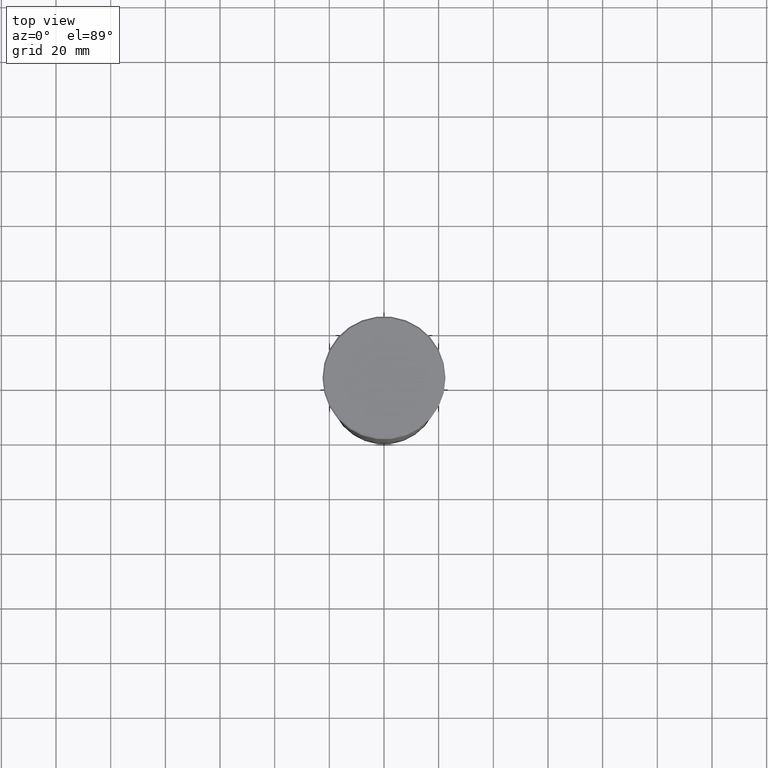
[diagram: clean part render]
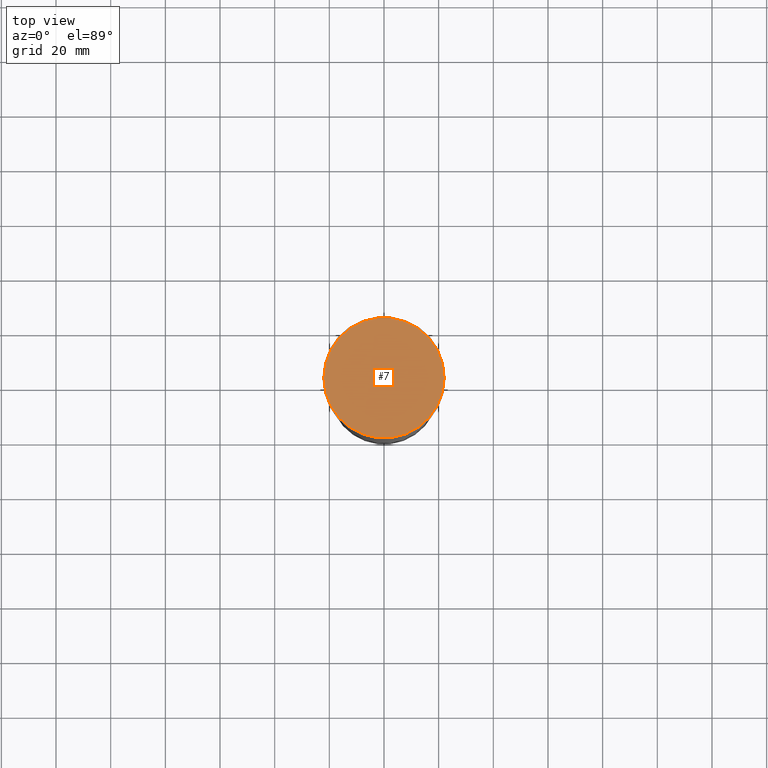
[diagram: same view with one face highlighted and labeled with its STEP entity id]
A machine part, top view. The second image highlights one B-rep face of the part: STEP entity #7.
In plain terms, the highlighted planar face has unit normal (0, -0, 1).
Its self-contained STEP definition (entity closure, byte-faithful):
#7 = ADVANCED_FACE ( 'NONE', ( #745 ), #593, .T. ) ;
#50 = CARTESIAN_POINT ( 'NONE',  ( -21.99999999999998579, 0.000000000000000000, 0.000000000000000000 ) ) ;
#123 = ORIENTED_EDGE ( 'NONE', *, *, #915, .T. ) ;
#150 = CARTESIAN_POINT ( 'NONE',  ( 0.000000000000000000, 0.000000000000000000, 0.000000000000000000 ) ) ;
#174 = CARTESIAN_POINT ( 'NONE',  ( 0.000000000000000000, 0.000000000000000000, 0.000000000000000000 ) ) ;
#295 = DIRECTION ( 'NONE',  ( -0.000000000000000000, -0.000000000000000000, 1.000000000000000000 ) ) ;
#313 = CIRCLE ( 'NONE', #971, 21.99999999999998579 ) ;
#336 = ORIENTED_EDGE ( 'NONE', *, *, #860, .T. ) ;
#359 = EDGE_LOOP ( 'NONE', ( #123, #336 ) ) ;
#374 = AXIS2_PLACEMENT_3D ( 'NONE', #904, #769, #529 ) ;
#375 = VERTEX_POINT ( 'NONE', #50 ) ;
#403 = CARTESIAN_POINT ( 'NONE',  ( 21.99999999999998579, 2.724839128102860202E-15, 0.000000000000000000 ) ) ;
#529 = DIRECTION ( 'NONE',  ( 1.000000000000000000, 0.000000000000000000, 0.000000000000000000 ) ) ;
#593 = PLANE ( 'NONE',  #991 ) ;
#656 = VERTEX_POINT ( 'NONE', #403 ) ;
#685 = DIRECTION ( 'NONE',  ( 0.000000000000000000, -0.000000000000000000, 1.000000000000000000 ) ) ;
#745 = FACE_OUTER_BOUND ( 'NONE', #359, .T. ) ;
#769 = DIRECTION ( 'NONE',  ( -0.000000000000000000, -0.000000000000000000, 1.000000000000000000 ) ) ;
#807 = DIRECTION ( 'NONE',  ( 1.000000000000000000, 0.000000000000000000, 0.000000000000000000 ) ) ;
#859 = DIRECTION ( 'NONE',  ( 1.000000000000000000, 0.000000000000000000, 0.000000000000000000 ) ) ;
#860 = EDGE_CURVE ( 'NONE', #656, #375, #1052, .T. ) ;
#904 = CARTESIAN_POINT ( 'NONE',  ( 0.000000000000000000, 0.000000000000000000, 0.000000000000000000 ) ) ;
#915 = EDGE_CURVE ( 'NONE', #375, #656, #313, .T. ) ;
#971 = AXIS2_PLACEMENT_3D ( 'NONE', #150, #295, #807 ) ;
#991 = AXIS2_PLACEMENT_3D ( 'NONE', #174, #685, #859 ) ;
#1052 = CIRCLE ( 'NONE', #374, 21.99999999999998579 ) ;